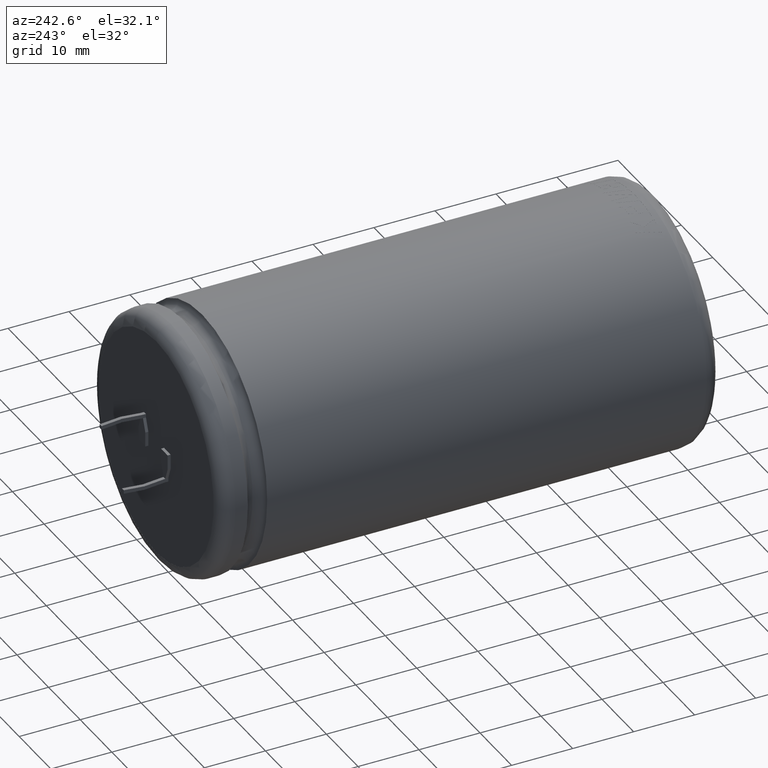
[diagram: clean part render]
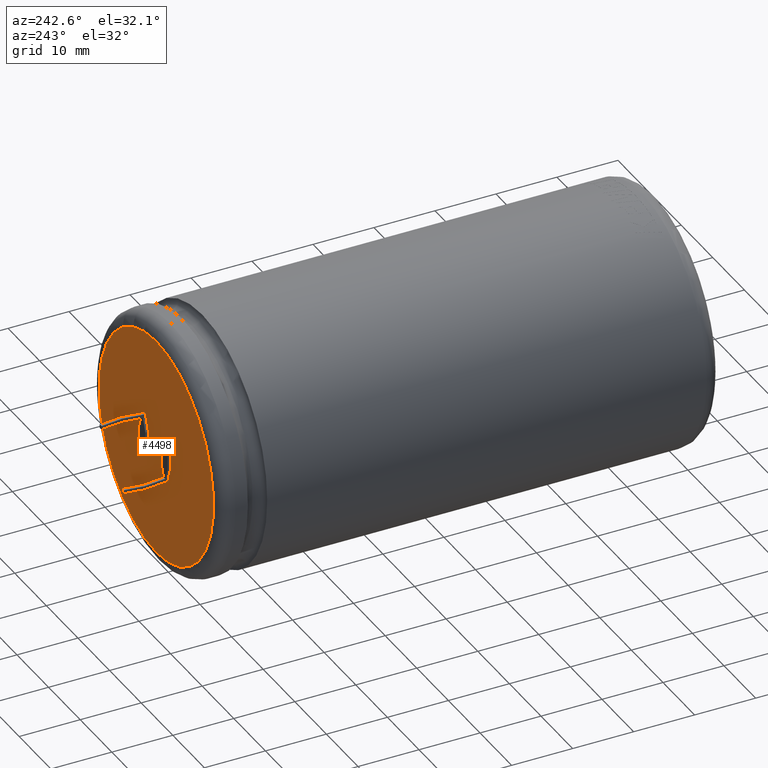
[diagram: same view with one face highlighted and labeled with its STEP entity id]
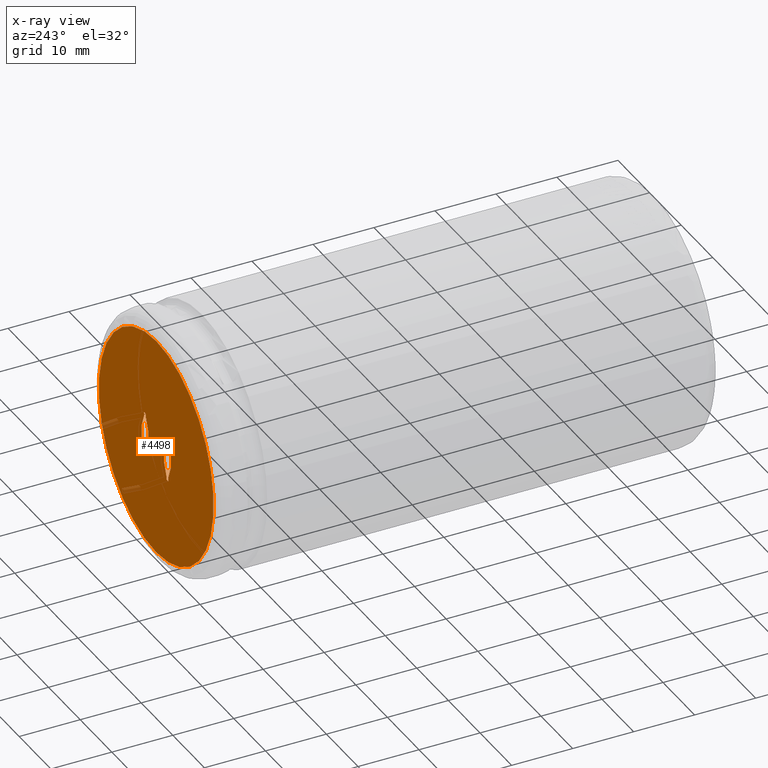
[diagram: x-ray of the same camera — body ghosted, the highlighted face saturated]
A machine part, auxiliary view. The second image highlights one B-rep face of the part: STEP entity #4498.
The next image is the same camera in x-ray: the body ghosted, the highlighted face saturated — about 1% of this face is hidden behind the body in this view.
In plain terms, the highlighted planar face has unit normal (0, 1, 0).
Its self-contained STEP definition (entity closure, byte-faithful):
#7 = AXIS2_PLACEMENT_3D ( 'NONE', #3961, #608, #4664 ) ;
#8 = LINE ( 'NONE', #507, #504 ) ;
#22 = LINE ( 'NONE', #749, #3825 ) ;
#154 = CARTESIAN_POINT ( 'NONE',  ( 2.485533905932738800, 81.99000000000000900, -1.200000000000004000 ) ) ;
#173 = VECTOR ( 'NONE', #3347, 1000.000000000000000 ) ;
#195 = ORIENTED_EDGE ( 'NONE', *, *, #3380, .F. ) ;
#230 = DIRECTION ( 'NONE',  ( 0.0000000000000000000, 0.0000000000000000000, 1.000000000000000000 ) ) ;
#293 = ORIENTED_EDGE ( 'NONE', *, *, #3765, .F. ) ;
#331 = EDGE_CURVE ( 'NONE', #499, #3378, #3348, .T. ) ;
#347 = ORIENTED_EDGE ( 'NONE', *, *, #2722, .F. ) ;
#369 = CARTESIAN_POINT ( 'NONE',  ( 4.585533905932739400, 81.99000000000000900, 1.199999999999995300 ) ) ;
#408 = CIRCLE ( 'NONE', #2873, 18.13839999999999700 ) ;
#419 = VERTEX_POINT ( 'NONE', #154 ) ;
#478 = CIRCLE ( 'NONE', #7, 18.13839999999999700 ) ;
#499 = VERTEX_POINT ( 'NONE', #689 ) ;
#504 = VECTOR ( 'NONE', #1398, 1000.000000000000000 ) ;
#507 = CARTESIAN_POINT ( 'NONE',  ( 2.485533905932738400, 81.99000000000000900, -4.171734828359475000E-015 ) ) ;
#555 = VERTEX_POINT ( 'NONE', #3715 ) ;
#562 = VECTOR ( 'NONE', #1146, 1000.000000000000000 ) ;
#574 = CARTESIAN_POINT ( 'NONE',  ( 4.585533905932739400, 81.99000000000000900, -1.200000000000004400 ) ) ;
#608 = DIRECTION ( 'NONE',  ( 0.0000000000000000000, 1.000000000000000000, 0.0000000000000000000 ) ) ;
#639 = DIRECTION ( 'NONE',  ( -1.000000000000000000, 0.0000000000000000000, -3.923779290899926400E-015 ) ) ;
#684 = VERTEX_POINT ( 'NONE', #1328 ) ;
#689 = CARTESIAN_POINT ( 'NONE',  ( -2.485533905932738800, 81.99000000000000900, 1.200000000000004000 ) ) ;
#697 = DIRECTION ( 'NONE',  ( 0.3457323320025593700, 0.0000000000000000000, -0.9383331788912039300 ) ) ;
#699 = CARTESIAN_POINT ( 'NONE',  ( -4.585533905932739400, 81.99000000000000900, -1.199999999999995300 ) ) ;
#703 = VECTOR ( 'NONE', #2227, 1000.000000000000000 ) ;
#717 = DIRECTION ( 'NONE',  ( 0.0000000000000000000, -0.0000000000000000000, 1.000000000000000000 ) ) ;
#743 = VERTEX_POINT ( 'NONE', #1830 ) ;
#749 = CARTESIAN_POINT ( 'NONE',  ( 3.235533905932737500, 81.99000000000000900, 3.235533905932737500 ) ) ;
#807 = LINE ( 'NONE', #2483, #3140 ) ;
#824 = CARTESIAN_POINT ( 'NONE',  ( 0.0000000000000000000, 81.99000000000000900, 18.13839999999999700 ) ) ;
#843 = LINE ( 'NONE', #4327, #3971 ) ;
#850 = VERTEX_POINT ( 'NONE', #934 ) ;
#868 = VERTEX_POINT ( 'NONE', #4644 ) ;
#934 = CARTESIAN_POINT ( 'NONE',  ( -3.835533905932737100, 81.99000000000000900, -3.235533905932737500 ) ) ;
#1014 = CARTESIAN_POINT ( 'NONE',  ( -4.585533905932739400, 81.99000000000000900, -1.199999999999995300 ) ) ;
#1091 = EDGE_CURVE ( 'NONE', #3378, #2167, #807, .T. ) ;
#1134 = EDGE_LOOP ( 'NONE', ( #3700, #4089, #2255, #195, #1329, #2375, #2681, #1262 ) ) ;
#1143 = EDGE_CURVE ( 'NONE', #3714, #3829, #22, .T. ) ;
#1146 = DIRECTION ( 'NONE',  ( 0.0000000000000000000, -0.0000000000000000000, 1.000000000000000000 ) ) ;
#1229 = VECTOR ( 'NONE', #4008, 1000.000000000000000 ) ;
#1262 = ORIENTED_EDGE ( 'NONE', *, *, #3702, .F. ) ;
#1318 = CARTESIAN_POINT ( 'NONE',  ( -4.585533905932739400, 81.99000000000000900, -1.199999999999995300 ) ) ;
#1322 = CARTESIAN_POINT ( 'NONE',  ( 3.235533905932737500, 81.99000000000000900, 3.235533905932737500 ) ) ;
#1328 = CARTESIAN_POINT ( 'NONE',  ( 3.835533905932737100, 81.99000000000000900, 3.235533905932737500 ) ) ;
#1329 = ORIENTED_EDGE ( 'NONE', *, *, #1774, .F. ) ;
#1381 = ORIENTED_EDGE ( 'NONE', *, *, #3884, .F. ) ;
#1386 = ORIENTED_EDGE ( 'NONE', *, *, #3710, .F. ) ;
#1398 = DIRECTION ( 'NONE',  ( 0.0000000000000000000, 0.0000000000000000000, 1.000000000000000000 ) ) ;
#1416 = DIRECTION ( 'NONE',  ( -1.000000000000000000, -0.0000000000000000000, -0.0000000000000000000 ) ) ;
#1434 = FACE_BOUND ( 'NONE', #1134, .T. ) ;
#1460 = VECTOR ( 'NONE', #1750, 1000.000000000000000 ) ;
#1493 = LINE ( 'NONE', #1520, #173 ) ;
#1495 = EDGE_CURVE ( 'NONE', #2838, #3807, #3713, .T. ) ;
#1520 = CARTESIAN_POINT ( 'NONE',  ( 3.835533905932737600, 81.99000000000000900, 3.835533905932737600 ) ) ;
#1623 = LINE ( 'NONE', #2555, #2812 ) ;
#1739 = CARTESIAN_POINT ( 'NONE',  ( 2.485533905932738800, 81.99000000000000900, -1.200000000000004000 ) ) ;
#1750 = DIRECTION ( 'NONE',  ( 7.228014483236692600E-016, 0.0000000000000000000, 1.000000000000000000 ) ) ;
#1756 = CARTESIAN_POINT ( 'NONE',  ( 3.235533905932737500, 81.99000000000000900, 3.835533905932737600 ) ) ;
#1774 = EDGE_CURVE ( 'NONE', #3829, #555, #2148, .T. ) ;
#1806 = EDGE_CURVE ( 'NONE', #4808, #3014, #408, .T. ) ;
#1822 = CARTESIAN_POINT ( 'NONE',  ( 2.485533905932738400, 81.99000000000000900, 1.199999999999995700 ) ) ;
#1830 = CARTESIAN_POINT ( 'NONE',  ( -3.235533905932737500, 81.99000000000000900, -3.835533905932737600 ) ) ;
#1848 = DIRECTION ( 'NONE',  ( 0.0000000000000000000, 0.0000000000000000000, -1.000000000000000000 ) ) ;
#1851 = EDGE_CURVE ( 'NONE', #3573, #684, #1493, .T. ) ;
#1858 = DIRECTION ( 'NONE',  ( 0.0000000000000000000, 1.000000000000000000, 0.0000000000000000000 ) ) ;
#1872 = VECTOR ( 'NONE', #639, 1000.000000000000000 ) ;
#1895 = FACE_BOUND ( 'NONE', #3255, .T. ) ;
#1899 = CARTESIAN_POINT ( 'NONE',  ( 0.0000000000000000000, 81.99000000000000900, 0.0000000000000000000 ) ) ;
#1958 = CARTESIAN_POINT ( 'NONE',  ( -2.485533905932738400, 81.99000000000000900, 4.171734828359475000E-015 ) ) ;
#1983 = LINE ( 'NONE', #699, #703 ) ;
#1995 = EDGE_CURVE ( 'NONE', #419, #3714, #8, .T. ) ;
#2083 = CARTESIAN_POINT ( 'NONE',  ( 3.835533905932737600, 81.99000000000000900, 3.835533905932737600 ) ) ;
#2148 = LINE ( 'NONE', #1756, #562 ) ;
#2167 = VERTEX_POINT ( 'NONE', #4545 ) ;
#2218 = ORIENTED_EDGE ( 'NONE', *, *, #331, .F. ) ;
#2219 = VECTOR ( 'NONE', #1848, 1000.000000000000000 ) ;
#2227 = DIRECTION ( 'NONE',  ( -0.3457323320025593700, -0.0000000000000000000, 0.9383331788912039300 ) ) ;
#2255 = ORIENTED_EDGE ( 'NONE', *, *, #1851, .F. ) ;
#2282 = VERTEX_POINT ( 'NONE', #1014 ) ;
#2375 = ORIENTED_EDGE ( 'NONE', *, *, #1143, .F. ) ;
#2483 = CARTESIAN_POINT ( 'NONE',  ( -3.235533905932737500, 81.99000000000000900, -3.235533905932737500 ) ) ;
#2486 = ORIENTED_EDGE ( 'NONE', *, *, #1806, .T. ) ;
#2526 = CARTESIAN_POINT ( 'NONE',  ( -3.235533905932737500, 81.99000000000000900, -3.835533905932737600 ) ) ;
#2536 = CARTESIAN_POINT ( 'NONE',  ( -3.835533905932737600, 81.99000000000000900, -3.835533905932737600 ) ) ;
#2555 = CARTESIAN_POINT ( 'NONE',  ( -2.485533905932738800, 81.99000000000000900, 1.200000000000004000 ) ) ;
#2600 = VECTOR ( 'NONE', #3400, 1000.000000000000000 ) ;
#2607 = DIRECTION ( 'NONE',  ( 0.0000000000000000000, 0.0000000000000000000, 1.000000000000000000 ) ) ;
#2608 = ORIENTED_EDGE ( 'NONE', *, *, #1091, .F. ) ;
#2616 = LINE ( 'NONE', #3329, #4143 ) ;
#2647 = CARTESIAN_POINT ( 'NONE',  ( -2.485533905932738400, 81.99000000000000900, -1.199999999999995700 ) ) ;
#2681 = ORIENTED_EDGE ( 'NONE', *, *, #1995, .F. ) ;
#2720 = ORIENTED_EDGE ( 'NONE', *, *, #3184, .F. ) ;
#2722 = EDGE_CURVE ( 'NONE', #2282, #3808, #2828, .T. ) ;
#2812 = VECTOR ( 'NONE', #2883, 1000.000000000000000 ) ;
#2828 = LINE ( 'NONE', #1318, #4086 ) ;
#2838 = VERTEX_POINT ( 'NONE', #369 ) ;
#2841 = DIRECTION ( 'NONE',  ( 0.0000000000000000000, 1.000000000000000000, 0.0000000000000000000 ) ) ;
#2873 = AXIS2_PLACEMENT_3D ( 'NONE', #1899, #1858, #2607 ) ;
#2883 = DIRECTION ( 'NONE',  ( 1.000000000000000000, -0.0000000000000000000, 3.923779290899926400E-015 ) ) ;
#3014 = VERTEX_POINT ( 'NONE', #824 ) ;
#3042 = LINE ( 'NONE', #1739, #1872 ) ;
#3134 = DIRECTION ( 'NONE',  ( 0.0000000000000000000, 0.0000000000000000000, -1.000000000000000000 ) ) ;
#3140 = VECTOR ( 'NONE', #4035, 1000.000000000000100 ) ;
#3184 = EDGE_CURVE ( 'NONE', #2167, #743, #4539, .T. ) ;
#3212 = LINE ( 'NONE', #2536, #1460 ) ;
#3229 = VECTOR ( 'NONE', #3134, 1000.000000000000000 ) ;
#3255 = EDGE_LOOP ( 'NONE', ( #347, #1386, #1381, #4676, #2720, #2608, #2218, #293 ) ) ;
#3329 = CARTESIAN_POINT ( 'NONE',  ( 4.585533905932739400, 81.99000000000000900, 1.199999999999995300 ) ) ;
#3347 = DIRECTION ( 'NONE',  ( -7.228014483236692600E-016, 0.0000000000000000000, -1.000000000000000000 ) ) ;
#3348 = LINE ( 'NONE', #1958, #3229 ) ;
#3378 = VERTEX_POINT ( 'NONE', #2647 ) ;
#3380 = EDGE_CURVE ( 'NONE', #555, #3573, #4657, .T. ) ;
#3400 = DIRECTION ( 'NONE',  ( 1.000000000000000000, -0.0000000000000000000, 0.0000000000000000000 ) ) ;
#3526 = ORIENTED_EDGE ( 'NONE', *, *, #3912, .T. ) ;
#3534 = AXIS2_PLACEMENT_3D ( 'NONE', #4299, #2841, #717 ) ;
#3562 = PLANE ( 'NONE',  #3534 ) ;
#3573 = VERTEX_POINT ( 'NONE', #2083 ) ;
#3687 = DIRECTION ( 'NONE',  ( 0.3457323320025580400, -0.0000000000000000000, 0.9383331788912043800 ) ) ;
#3700 = ORIENTED_EDGE ( 'NONE', *, *, #1495, .F. ) ;
#3702 = EDGE_CURVE ( 'NONE', #3807, #419, #3042, .T. ) ;
#3710 = EDGE_CURVE ( 'NONE', #850, #2282, #1983, .T. ) ;
#3713 = LINE ( 'NONE', #3978, #2219 ) ;
#3714 = VERTEX_POINT ( 'NONE', #1822 ) ;
#3715 = CARTESIAN_POINT ( 'NONE',  ( 3.235533905932737500, 81.99000000000000900, 3.835533905932737600 ) ) ;
#3765 = EDGE_CURVE ( 'NONE', #3808, #499, #1623, .T. ) ;
#3807 = VERTEX_POINT ( 'NONE', #574 ) ;
#3808 = VERTEX_POINT ( 'NONE', #3881 ) ;
#3825 = VECTOR ( 'NONE', #3687, 1000.000000000000100 ) ;
#3829 = VERTEX_POINT ( 'NONE', #1322 ) ;
#3881 = CARTESIAN_POINT ( 'NONE',  ( -4.585533905932739400, 81.99000000000000900, 1.200000000000004400 ) ) ;
#3884 = EDGE_CURVE ( 'NONE', #868, #850, #3212, .T. ) ;
#3912 = EDGE_CURVE ( 'NONE', #3014, #4808, #478, .T. ) ;
#3961 = CARTESIAN_POINT ( 'NONE',  ( 0.0000000000000000000, 81.99000000000000900, 0.0000000000000000000 ) ) ;
#3971 = VECTOR ( 'NONE', #1416, 1000.000000000000000 ) ;
#3978 = CARTESIAN_POINT ( 'NONE',  ( 4.585533905932739400, 81.99000000000000900, 1.199999999999995300 ) ) ;
#4008 = DIRECTION ( 'NONE',  ( -0.0000000000000000000, -0.0000000000000000000, -1.000000000000000000 ) ) ;
#4035 = DIRECTION ( 'NONE',  ( -0.3457323320025580400, -0.0000000000000000000, -0.9383331788912043800 ) ) ;
#4056 = CARTESIAN_POINT ( 'NONE',  ( 3.835533905932737600, 81.99000000000000900, 3.835533905932737600 ) ) ;
#4086 = VECTOR ( 'NONE', #230, 1000.000000000000000 ) ;
#4089 = ORIENTED_EDGE ( 'NONE', *, *, #4356, .F. ) ;
#4143 = VECTOR ( 'NONE', #697, 1000.000000000000000 ) ;
#4217 = CARTESIAN_POINT ( 'NONE',  ( 2.221313350165434800E-015, 81.99000000000000900, -18.13839999999999700 ) ) ;
#4299 = CARTESIAN_POINT ( 'NONE',  ( 0.0000000000000000000, 81.99000000000000900, 0.0000000000000000000 ) ) ;
#4311 = EDGE_CURVE ( 'NONE', #743, #868, #843, .T. ) ;
#4327 = CARTESIAN_POINT ( 'NONE',  ( -3.835533905932737600, 81.99000000000000900, -3.835533905932737600 ) ) ;
#4356 = EDGE_CURVE ( 'NONE', #684, #2838, #2616, .T. ) ;
#4448 = FACE_OUTER_BOUND ( 'NONE', #4468, .T. ) ;
#4468 = EDGE_LOOP ( 'NONE', ( #3526, #2486 ) ) ;
#4498 = ADVANCED_FACE ( 'NONE', ( #1895, #4448, #1434 ), #3562, .T. ) ;
#4539 = LINE ( 'NONE', #2526, #1229 ) ;
#4545 = CARTESIAN_POINT ( 'NONE',  ( -3.235533905932737500, 81.99000000000000900, -3.235533905932737500 ) ) ;
#4644 = CARTESIAN_POINT ( 'NONE',  ( -3.835533905932737600, 81.99000000000000900, -3.835533905932737600 ) ) ;
#4657 = LINE ( 'NONE', #4056, #2600 ) ;
#4664 = DIRECTION ( 'NONE',  ( 0.0000000000000000000, 0.0000000000000000000, 1.000000000000000000 ) ) ;
#4676 = ORIENTED_EDGE ( 'NONE', *, *, #4311, .F. ) ;
#4808 = VERTEX_POINT ( 'NONE', #4217 ) ;